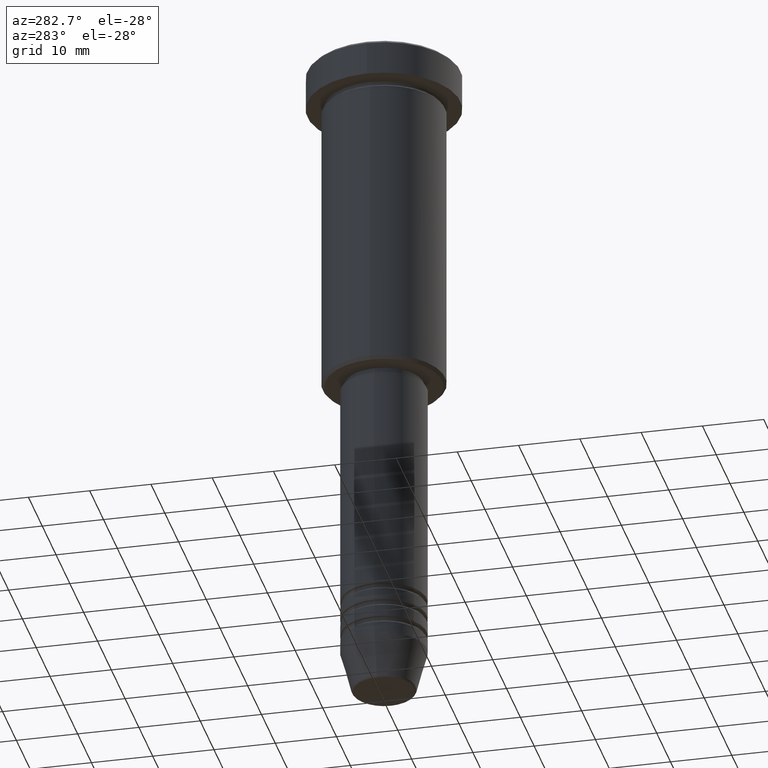
[diagram: clean part render]
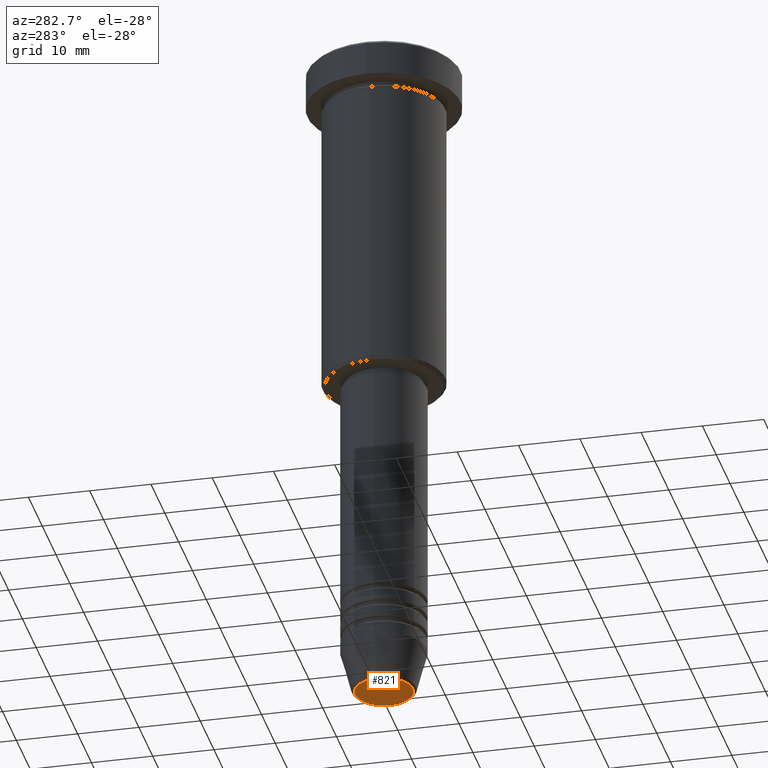
[diagram: same view with one face highlighted and labeled with its STEP entity id]
A machine part, auxiliary view. The second image highlights one B-rep face of the part: STEP entity #821.
In plain terms, the highlighted planar face has unit normal (0, -0, 1).
Its self-contained STEP definition (entity closure, byte-faithful):
#21 = AXIS2_PLACEMENT_3D ( 'NONE', #762, #1017, #1129 ) ;
#151 = FACE_OUTER_BOUND ( 'NONE', #717, .T. ) ;
#160 = CIRCLE ( 'NONE', #693, 4.740692158992659166 ) ;
#340 = ORIENTED_EDGE ( 'NONE', *, *, #377, .T. ) ;
#377 = EDGE_CURVE ( 'NONE', #687, #864, #389, .T. ) ;
#389 = CIRCLE ( 'NONE', #21, 4.740692158992659166 ) ;
#409 = PLANE ( 'NONE',  #747 ) ;
#514 = DIRECTION ( 'NONE',  ( 0.000000000000000000, -0.000000000000000000, 1.000000000000000000 ) ) ;
#637 = EDGE_CURVE ( 'NONE', #864, #687, #160, .T. ) ;
#687 = VERTEX_POINT ( 'NONE', #922 ) ;
#693 = AXIS2_PLACEMENT_3D ( 'NONE', #889, #817, #988 ) ;
#717 = EDGE_LOOP ( 'NONE', ( #1040, #340 ) ) ;
#747 = AXIS2_PLACEMENT_3D ( 'NONE', #871, #514, #866 ) ;
#762 = CARTESIAN_POINT ( 'NONE',  ( 0.000000000000000000, 0.000000000000000000, -111.0000000000000000 ) ) ;
#814 = CARTESIAN_POINT ( 'NONE',  ( 4.740692158992659166, 0.000000000000000000, -111.0000000000000000 ) ) ;
#817 = DIRECTION ( 'NONE',  ( 0.000000000000000000, 0.000000000000000000, -1.000000000000000000 ) ) ;
#821 = ADVANCED_FACE ( 'NONE', ( #151 ), #409, .F. ) ;
#864 = VERTEX_POINT ( 'NONE', #814 ) ;
#866 = DIRECTION ( 'NONE',  ( 1.000000000000000000, 0.000000000000000000, 0.000000000000000000 ) ) ;
#871 = CARTESIAN_POINT ( 'NONE',  ( 0.000000000000000000, 0.000000000000000000, -111.0000000000000000 ) ) ;
#889 = CARTESIAN_POINT ( 'NONE',  ( 0.000000000000000000, 0.000000000000000000, -111.0000000000000000 ) ) ;
#922 = CARTESIAN_POINT ( 'NONE',  ( -4.740692158992659166, 6.101402971097984690E-16, -111.0000000000000000 ) ) ;
#988 = DIRECTION ( 'NONE',  ( 1.000000000000000000, 0.000000000000000000, 0.000000000000000000 ) ) ;
#1017 = DIRECTION ( 'NONE',  ( 0.000000000000000000, 0.000000000000000000, -1.000000000000000000 ) ) ;
#1040 = ORIENTED_EDGE ( 'NONE', *, *, #637, .T. ) ;
#1129 = DIRECTION ( 'NONE',  ( 1.000000000000000000, 0.000000000000000000, 0.000000000000000000 ) ) ;